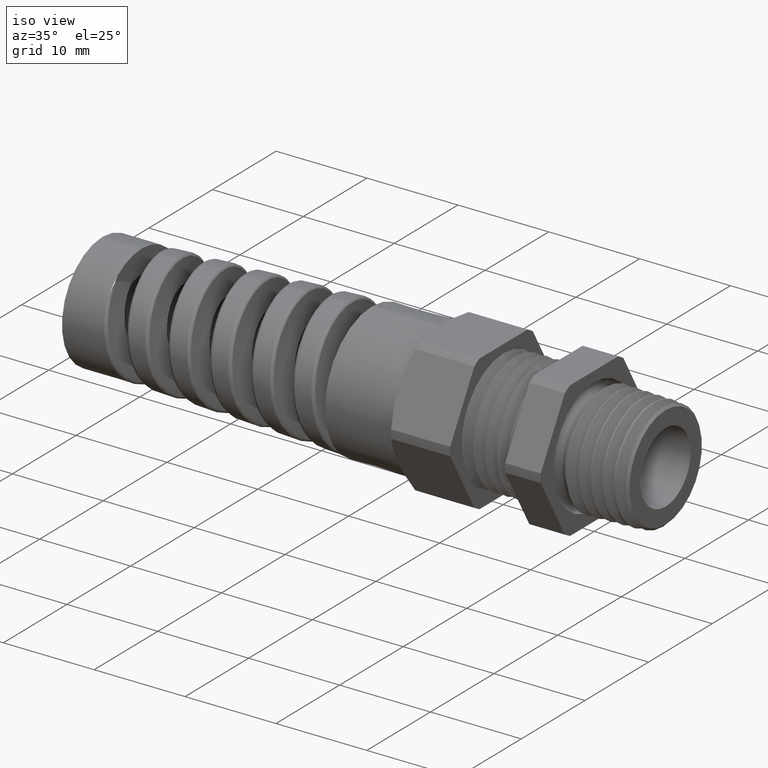
[diagram: clean part render]
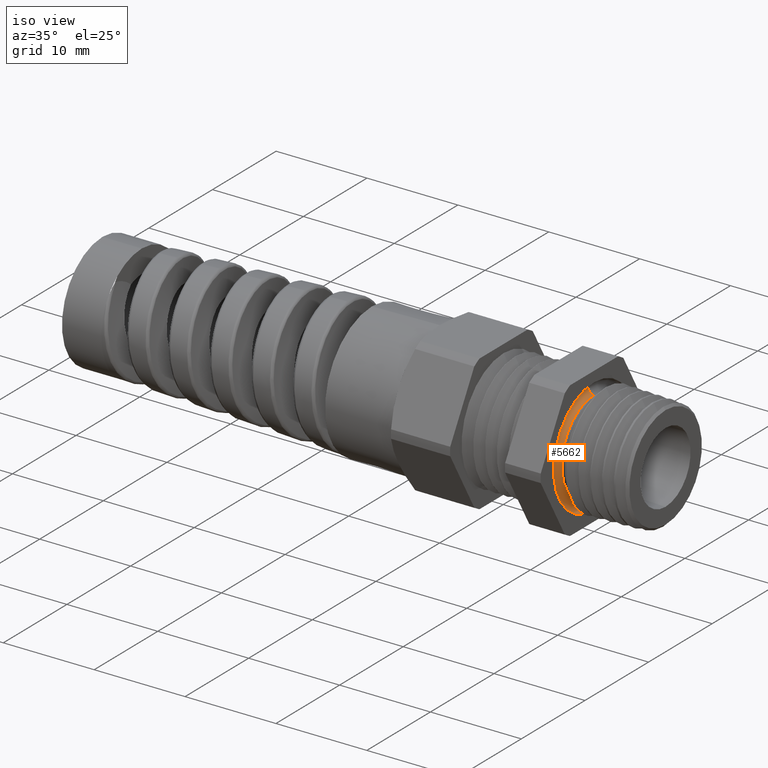
[diagram: same view with one face highlighted and labeled with its STEP entity id]
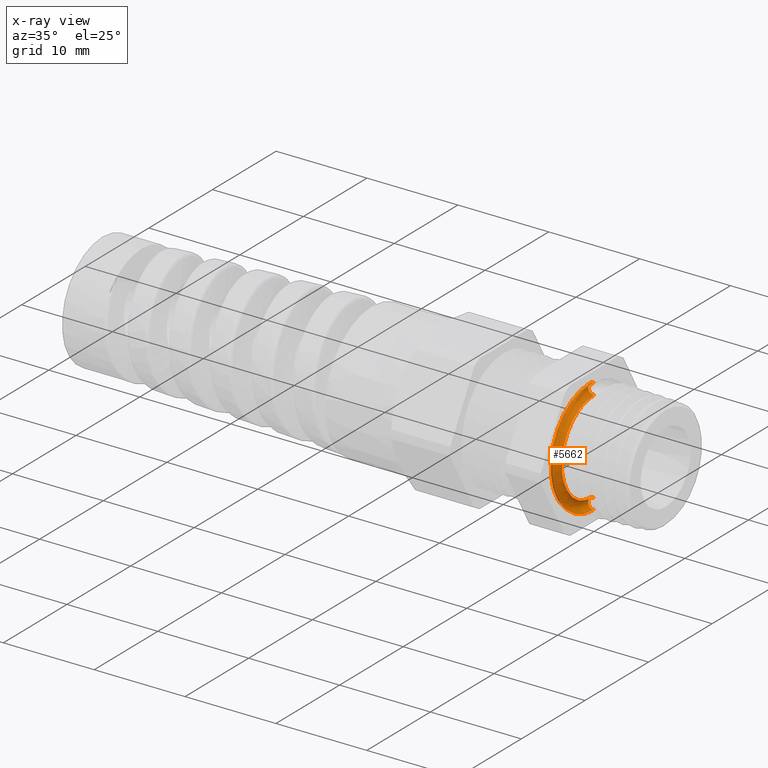
[diagram: x-ray of the same camera — body ghosted, the highlighted face saturated]
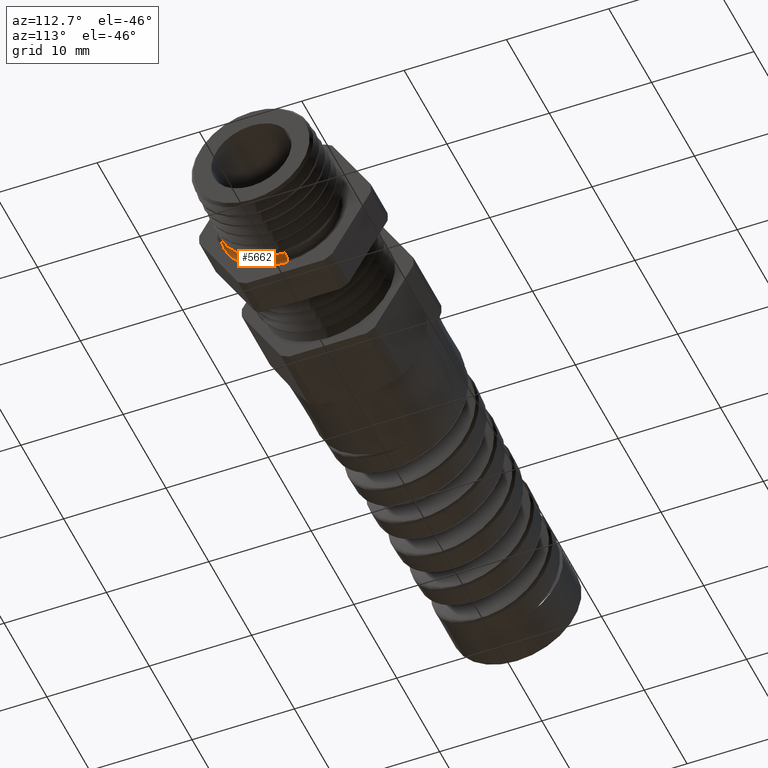
[diagram: same view with one face highlighted and labeled with its STEP entity id]
A machine part, iso view. The second image highlights one B-rep face of the part: STEP entity #5662.
The next image is the same camera in x-ray: the body ghosted, the highlighted face saturated — about 0% of this face is hidden behind the body in this view.
A second angle (auxiliary view) of the same face is appended — the face is thin or edge-on in the first view.
In plain terms, the highlighted toroidal blend (fillet) surface has major radius 5.715 mm and minor (blend) radius 0.635 mm.
Its self-contained STEP definition (entity closure, byte-faithful):
#2960 = CARTESIAN_POINT ( 'NONE',  ( 1.365923996832131600E-016, 0.0000000000000000000, -0.2499999999999997500 ) ) ;
#2986 = CIRCLE ( 'NONE', #2991, 0.02499999999999983500 ) ;
#2991 = AXIS2_PLACEMENT_3D ( 'NONE', #3052, #3051, #3050 ) ;
#2997 = DIRECTION ( 'NONE',  ( 0.0000000000000000000, 1.224646799147352500E-016, 1.000000000000000000 ) ) ;
#2998 = DIRECTION ( 'NONE',  ( 0.0000000000000000000, 1.000000000000000000, -1.224646799147353200E-016 ) ) ;
#2999 = CARTESIAN_POINT ( 'NONE',  ( 0.0000000000000000000, 2.755455298081543900E-017, 0.2249999999999999200 ) ) ;
#3000 = AXIS2_PLACEMENT_3D ( 'NONE', #2999, #2998, #2997 ) ;
#3001 = CIRCLE ( 'NONE', #3000, 0.02499999999999983500 ) ;
#3002 = CARTESIAN_POINT ( 'NONE',  ( 1.365923996832131600E-016, 3.061616997868379900E-017, 0.2499999999999997500 ) ) ;
#3045 = DIRECTION ( 'NONE',  ( 0.0000000000000000000, 0.0000000000000000000, 1.000000000000000000 ) ) ;
#3046 = DIRECTION ( 'NONE',  ( 1.000000000000000000, 0.0000000000000000000, 0.0000000000000000000 ) ) ;
#3047 = CARTESIAN_POINT ( 'NONE',  ( 1.365923996832131600E-016, 0.0000000000000000000, 0.0000000000000000000 ) ) ;
#3048 = AXIS2_PLACEMENT_3D ( 'NONE', #3047, #3046, #3045 ) ;
#3049 = CIRCLE ( 'NONE', #3048, 0.2499999999999997500 ) ;
#3050 = DIRECTION ( 'NONE',  ( 0.0000000000000000000, 0.0000000000000000000, -1.000000000000000000 ) ) ;
#3051 = DIRECTION ( 'NONE',  ( 0.0000000000000000000, -1.000000000000000000, 0.0000000000000000000 ) ) ;
#3052 = CARTESIAN_POINT ( 'NONE',  ( 0.0000000000000000000, 0.0000000000000000000, -0.2249999999999999200 ) ) ;
#3168 = DIRECTION ( 'NONE',  ( 0.0000000000000000000, 0.0000000000000000000, -1.000000000000000000 ) ) ;
#3169 = DIRECTION ( 'NONE',  ( 1.000000000000000000, 0.0000000000000000000, 0.0000000000000000000 ) ) ;
#3170 = CARTESIAN_POINT ( 'NONE',  ( 0.0000000000000000000, 0.0000000000000000000, 0.0000000000000000000 ) ) ;
#3171 = AXIS2_PLACEMENT_3D ( 'NONE', #3170, #3169, #3168 ) ;
#3173 = TOROIDAL_SURFACE ( 'NONE', #3171, 0.2249999999999999200, 0.02499999999999983500 ) ;
#3174 = FACE_OUTER_BOUND ( 'NONE', #5653, .T. ) ;
#3313 = CARTESIAN_POINT ( 'NONE',  ( -3.061616997868362800E-018, 2.449293598294707800E-017, 0.2000000000000000900 ) ) ;
#3320 = DIRECTION ( 'NONE',  ( 0.0000000000000000000, 0.0000000000000000000, -1.000000000000000000 ) ) ;
#3321 = DIRECTION ( 'NONE',  ( 1.000000000000000000, 0.0000000000000000000, 0.0000000000000000000 ) ) ;
#3322 = CARTESIAN_POINT ( 'NONE',  ( -3.061616997868362800E-018, 0.0000000000000000000, 0.0000000000000000000 ) ) ;
#3323 = AXIS2_PLACEMENT_3D ( 'NONE', #3322, #3321, #3320 ) ;
#3324 = CIRCLE ( 'NONE', #3323, 0.2000000000000000900 ) ;
#3379 = CARTESIAN_POINT ( 'NONE',  ( -3.061616997868362800E-018, 0.0000000000000000000, -0.2000000000000000900 ) ) ;
#5522 = VERTEX_POINT ( 'NONE', #2960 ) ;
#5546 = VERTEX_POINT ( 'NONE', #3002 ) ;
#5548 = EDGE_CURVE ( 'NONE', #5718, #5546, #3001, .T. ) ;
#5549 = ORIENTED_EDGE ( 'NONE', *, *, #5714, .F. ) ;
#5550 = ORIENTED_EDGE ( 'NONE', *, *, #5548, .T. ) ;
#5584 = EDGE_CURVE ( 'NONE', #5747, #5522, #2986, .T. ) ;
#5587 = EDGE_CURVE ( 'NONE', #5546, #5522, #3049, .T. ) ;
#5597 = ORIENTED_EDGE ( 'NONE', *, *, #5584, .F. ) ;
#5598 = ORIENTED_EDGE ( 'NONE', *, *, #5587, .T. ) ;
#5653 = EDGE_LOOP ( 'NONE', ( #5549, #5550, #5598, #5597 ) ) ;
#5662 = ADVANCED_FACE ( 'NONE', ( #3174 ), #3173, .F. ) ;
#5714 = EDGE_CURVE ( 'NONE', #5718, #5747, #3324, .T. ) ;
#5718 = VERTEX_POINT ( 'NONE', #3313 ) ;
#5747 = VERTEX_POINT ( 'NONE', #3379 ) ;